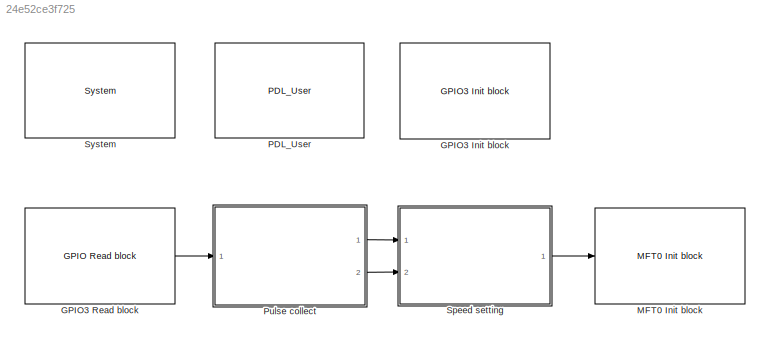
MODEL slx_24e52ce3f725
KIND model
CONFIG PreLoadFcn = FM4_customization
BLOCK [Reference] GPIO3 Init block  REF=FM4_Peripheral_Lib/GPIO/GPIO3 Init block
  Ports = []
  SourceBlock = FM4_Peripheral_Lib/GPIO/GPIO3 Init block
  SourceType = FM4 TSP
  g_GpioP30_Mode = GPIO Input Pin
  g_GpioP30_Pullup = Enable pull-up
  g_GpioP30_Used = on
  g_GpioP31_Mode = GPIO Output Pin
  g_GpioP31_Pullup = Disable pull-up
  g_GpioP31_Used = off
  g_GpioP32_Mode = GPIO Output Pin
  g_GpioP32_Pullup = Disable pull-up
  g_GpioP32_Used = off
  g_GpioP33_Mode = GPIO Output Pin
  g_GpioP33_PeriFcn = ADTG_6 for ADC0
  g_GpioP33_Pullup = Disable pull-up
  g_GpioP33_Used = off
  g_GpioP34_Mode = GPIO Output Pin
  g_GpioP34_PeriFcn = FRCK0_0 for FRCK0
  g_GpioP34_Pullup = Disable pull-up
  g_GpioP34_Used = off
  g_GpioP35_Mode = GPIO Output Pin
  g_GpioP35_PeriFcn = IC03_0 for IC03
  g_GpioP35_Pullup = Disable pull-up
  g_GpioP35_Used = off
  g_GpioP36_Mode = GPIO Output Pin
  g_GpioP36_PeriFcn = IC02_0 for IC02
  g_GpioP36_Pullup = Disable pull-up
  g_GpioP36_Used = off
  g_GpioP37_Mode = GPIO Output Pin
  g_GpioP37_PeriFcn = IC01_0 for IC01
  g_GpioP37_Pullup = Disable pull-up
  g_GpioP37_Used = off
  g_GpioP38_Mode = GPIO Output Pin
  g_GpioP38_PeriFcn = IC00_0 for IC00
  g_GpioP38_Pullup = Disable pull-up
  g_GpioP38_Used = off
  g_GpioP39_Mode = GPIO Output Pin
  g_GpioP39_PeriFcn = DTTIX0_0 for DTTIX0
  g_GpioP39_Pullup = Disable pull-up
  g_GpioP39_Used = off
  g_GpioP3A_Mode = Peripheral Function Pin
  g_GpioP3A_PeriFcn = RTO00_0 for RTO00
  g_GpioP3A_Pullup = Disable pull-up
  g_GpioP3A_Used = on
  g_GpioP3B_Mode = GPIO Output Pin
  g_GpioP3B_PeriFcn = RTO01_0 for RTO01
  g_GpioP3B_Pullup = Disable pull-up
  g_GpioP3B_Used = off
  g_GpioP3C_Mode = GPIO Output Pin
  g_GpioP3C_PeriFcn = RTO02_0 for RTO02
  g_GpioP3C_Pullup = Disable pull-up
  g_GpioP3C_Used = off
  g_GpioP3D_Mode = GPIO Output Pin
  g_GpioP3D_PeriFcn = RTO03_0 for RTO03
  g_GpioP3D_Pullup = Disable pull-up
  g_GpioP3D_Used = off
  g_GpioP3E_Mode = GPIO Output Pin
  g_GpioP3E_PeriFcn = RTO04_0 for RTO04
  g_GpioP3E_Pullup = Disable pull-up
  g_GpioP3E_Used = off
  g_GpioP3F_Mode = GPIO Output Pin
  g_GpioP3F_PeriFcn = RTO05_0 for RTO05
  g_GpioP3F_Pullup = Disable pull-up
  g_GpioP3F_Used = off
BLOCK [Reference] GPIO3 Read block  REF=FM4_Peripheral_Lib/GPIO/GPIO Read block
  Ports = [0, 1]
  SourceBlock = FM4_Peripheral_Lib/GPIO/GPIO Read block
  SourceType = FM4 TSP
  g_Check_GPIO0 = on
  g_Check_GPIO1 = on
  g_Check_GPIO2 = on
  g_Check_GPIO3 = on
  g_Check_GPIO4 = on
  g_Check_GPIO5 = on
  g_Check_GPIO6 = on
  g_Check_GPIO7 = on
  g_Check_GPIO8 = on
  g_Check_GPIOE = on
  g_GpioP00_Read = off
  g_GpioP01_Read = off
  g_GpioP02_Read = off
  g_GpioP03_Read = off
  g_GpioP04_Read = off
  g_GpioP05_Read = off
  g_GpioP06_Read = off
  g_GpioP07_Read = off
  g_GpioP08_Read = off
  g_GpioP09_Read = off
  g_GpioP0A_Read = off
  g_GpioP0B_Read = off
  g_GpioP0C_Read = off
  g_GpioP0D_Read = off
  g_GpioP0E_Read = off
  g_GpioP10_Read = off
  g_GpioP11_Read = off
  g_GpioP12_Read = off
  g_GpioP13_Read = off
  g_GpioP14_Read = off
  g_GpioP15_Read = off
  g_GpioP16_Read = off
  g_GpioP17_Read = off
  g_GpioP18_Read = off
  g_GpioP19_Read = off
  g_GpioP1A_Read = off
  g_GpioP1B_Read = off
  g_GpioP1C_Read = off
  g_GpioP1D_Read = off
  g_GpioP1E_Read = off
  g_GpioP1F_Read = off
  g_GpioP20_Read = off
  g_GpioP21_Read = off
  g_GpioP22_Read = off
  g_GpioP23_Read = off
  g_GpioP24_Read = off
  g_GpioP25_Read = off
  g_GpioP26_Read = off
  g_GpioP27_Read = off
  g_GpioP30_Read = on
  g_GpioP31_Read = off
  g_GpioP32_Read = off
  g_GpioP33_Read = off
  g_GpioP34_Read = off
  g_GpioP35_Read = off
  g_GpioP36_Read = off
  g_GpioP37_Read = off
  g_GpioP38_Read = off
  g_GpioP39_Read = off
  g_GpioP3A_Read = off
  g_GpioP3B_Read = off
  g_GpioP3C_Read = off
  g_GpioP3D_Read = off
  g_GpioP3E_Read = off
  g_GpioP3F_Read = off
  g_GpioP40_Read = off
  g_GpioP41_Read = off
  g_GpioP42_Read = off
  g_GpioP43_Read = off
  g_GpioP44_Read = off
  g_GpioP45_Read = off
  g_GpioP46_Read = off
  g_GpioP47_Read = off
  g_GpioP48_Read = off
  g_GpioP49_Read = off
  g_GpioP4B_Read = off
  g_GpioP4C_Read = off
  g_GpioP4D_Read = off
  g_GpioP4E_Read = off
  g_GpioP50_Read = off
  g_GpioP51_Read = off
  g_GpioP52_Read = off
  g_GpioP53_Read = off
  g_GpioP54_Read = off
  g_GpioP55_Read = off
  g_GpioP56_Read = off
  g_GpioP57_Read = off
  g_GpioP58_Read = off
  g_GpioP59_Read = off
  g_GpioP5A_Read = off
  g_GpioP5B_Read = off
  g_GpioP60_Read = off
  g_GpioP61_Read = off
  g_GpioP62_Read = off
  g_GpioP63_Read = off
  g_GpioP64_Read = off
  g_GpioP65_Read = off
  g_GpioP66_Read = off
  g_GpioP67_Read = off
  g_GpioP68_Read = off
  g_GpioP70_Read = off
  g_GpioP71_Read = off
  g_GpioP72_Read = off
  g_GpioP73_Read = off
  g_GpioP74_Read = off
  g_GpioP80_Read = off
  g_GpioP81_Read = off
  g_GpioPE0_Read = off
  g_GpioPE2_Read = off
  g_GpioPE3_Read = off
  g_Gpio_port_select = GPIO3
BLOCK [Reference] MFT0 Init block  REF=FM4_Peripheral_Lib/MFT/MFT0 Init block
  Ports = [1]
  SourceBlock = FM4_Peripheral_Lib/MFT/MFT0 Init block
  SourceType = FM4 TSP
  g_ADCMP0_config = off
  g_ADCMP1_config = off
  g_ADCMP2_config = off
  g_ADCMP3_config = off
  g_ADCMP4_config = off
  g_ADCMP5_config = off
  g_adcmp_acmp_buf_ch0 = Disable the buffer function
  g_adcmp_acmp_buf_ch1 = Disable the buffer function
  g_adcmp_acmp_buf_ch2 = Disable the buffer function
  g_adcmp_acmp_buf_ch3 = Disable the buffer function
  g_adcmp_acmp_buf_ch4 = Disable the buffer function
  g_adcmp_acmp_buf_ch5 = Disable the buffer function
  g_adcmp_com_val_ch0 = 0
  g_adcmp_com_val_ch1 = 0
  g_adcmp_com_val_ch2 = 0
  g_adcmp_com_val_ch3 = 0
  g_adcmp_com_val_ch4 = 0
  g_adcmp_com_val_ch5 = 0
  g_adcmp_des_ch0 = ADC0 scan conversion start
  g_adcmp_des_ch1 = ADC0 scan conversion start
  g_adcmp_des_ch2 = ADC0 scan conversion start
  g_adcmp_des_ch3 = ADC0 scan conversion start
  g_adcmp_des_ch4 = ADC0 scan conversion start
  g_adcmp_des_ch5 = ADC0 scan conversion start
  g_adcmp_down_fun_ch0 = off
  g_adcmp_down_fun_ch1 = off
  g_adcmp_down_fun_ch2 = off
  g_adcmp_down_fun_ch3 = off
  g_adcmp_down_fun_ch4 = off
  g_adcmp_down_fun_ch5 = off
  g_adcmp_mode_ch0 = Normal mode
  g_adcmp_mode_ch1 = Normal mode
  g_adcmp_mode_ch2 = Normal mode
  g_adcmp_mode_ch3 = Normal mode
  g_adcmp_mode_ch4 = Normal mode
  g_adcmp_mode_ch5 = Normal mode
  g_adcmp_ocu_sel_ch0 = OCCP0
  g_adcmp_ocu_sel_ch1 = OCCP0
  g_adcmp_ocu_sel_ch2 = OCCP2
  g_adcmp_ocu_sel_ch3 = OCCP2
  g_adcmp_ocu_sel_ch4 = OCCP4
  g_adcmp_ocu_sel_ch5 = OCCP4
  g_adcmp_peak_fun_ch0 = off
  g_adcmp_peak_fun_ch1 = off
  g_adcmp_peak_fun_ch2 = off
  g_adcmp_peak_fun_ch3 = off
  g_adcmp_peak_fun_ch4 = off
  g_adcmp_peak_fun_ch5 = off
  g_adcmp_up_fun_ch0 = off
  g_adcmp_up_fun_ch1 = off
  g_adcmp_up_fun_ch2 = off
  g_adcmp_up_fun_ch3 = off
  g_adcmp_up_fun_ch4 = off
  g_adcmp_up_fun_ch5 = off
  g_adcmp_zero_fun_ch0 = off
  g_adcmp_zero_fun_ch1 = off
  g_adcmp_zero_fun_ch2 = off
  g_adcmp_zero_fun_ch3 = off
  g_adcmp_zero_fun_ch4 = off
  g_adcmp_zero_fun_ch5 = off
  g_frt0_clk_cycle = PCLK divided by 1024
  g_frt0_clk_sig = Internal clock (PCLK)
  g_frt0_config = on
  g_frt0_count_mode = Up-count mode
  g_frt0_cycleval = 9999
  g_frt0_peakint = off
  g_frt0_peakint_callback = 'MFT0FRT0PeakIntCallback'
  g_frt0_peakint_mask = No Masked
  g_frt0_tccp_buf = off
  g_frt0_zeroint = off
  g_frt0_zeroint_callback = 'MFT0FRT0ZeroIntCallback'
  g_frt0_zeroint_mask = No Masked
  g_frt1_clk_cycle = The same value as PCLK
  g_frt1_clk_sig = Internal clock (PCLK)
  g_frt1_config = off
  g_frt1_count_mode = Up-count mode
  g_frt1_cycleval = 65535
  g_frt1_peakint = off
  g_frt1_peakint_callback = 'MFT0FRT1PeakIntCallback'
  g_frt1_peakint_mask = No Masked
  g_frt1_tccp_buf = off
  g_frt1_zeroint = off
  g_frt1_zeroint_callback = 'MFT0FRT1ZeroIntCallback'
  g_frt1_zeroint_mask = No Masked
  g_frt2_clk_cycle = The same value as PCLK
  g_frt2_clk_sig = Internal clock (PCLK)
  g_frt2_config = off
  g_frt2_count_mode = Up-count mode
  g_frt2_cycleval = 65535
  g_frt2_peakint = off
  g_frt2_peakint_callback = 'MFT0FRT2PeakIntCallback'
  g_frt2_peakint_mask = No Masked
  g_frt2_tccp_buf = off
  g_frt2_zeroint = off
  g_frt2_zeroint_callback = 'MFT0FRT2ZeroIntCallback'
  g_frt2_zeroint_mask = No Masked
  g_frt_connect_adcmp_ch0 = FRT0
  g_frt_connect_adcmp_ch1 = FRT0
  g_frt_connect_adcmp_ch2 = FRT0
  g_frt_connect_adcmp_ch3 = FRT0
  g_frt_connect_adcmp_ch4 = FRT0
  g_frt_connect_adcmp_ch5 = FRT0
  g_frt_connect_adcmp_ext_ch0 = FRT0 of MFT1
  g_frt_connect_adcmp_ext_ch1 = FRT0 of MFT1
  g_frt_connect_adcmp_ext_ch2 = FRT0 of MFT1
  g_frt_connect_adcmp_ext_ch3 = FRT0 of MFT1
  g_frt_connect_adcmp_ext_ch4 = FRT0 of MFT1
  g_frt_connect_adcmp_ext_ch5 = FRT0 of MFT1
  g_frt_connect_icu_ch0 = FRT0
  g_frt_connect_icu_ch1 = FRT0
  g_frt_connect_icu_ch2 = FRT0
  g_frt_connect_icu_ch3 = FRT0
  g_frt_connect_icu_ext_ch0 = FRT0 of MFT1
  g_frt_connect_icu_ext_ch1 = FRT0 of MFT1
  g_frt_connect_icu_ext_ch2 = FRT0 of MFT1
  g_frt_connect_icu_ext_ch3 = FRT0 of MFT1
  g_frt_connect_ocu_ch0 = FRT0
  g_frt_connect_ocu_ch1 = FRT0
  g_frt_connect_ocu_ch2 = FRT0
  g_frt_connect_ocu_ch3 = FRT0
  g_frt_connect_ocu_ch4 = FRT0
  g_frt_connect_ocu_ch5 = FRT0
  g_frt_connect_ocu_ext_ch0 = FRT0 of MFT1
  g_frt_connect_ocu_ext_ch1 = FRT0 of MFT1
  g_frt_connect_ocu_ext_ch2 = FRT0 of MFT1
  g_frt_connect_ocu_ext_ch3 = FRT0 of MFT1
  g_frt_connect_ocu_ext_ch4 = FRT0 of MFT1
  g_frt_connect_ocu_ext_ch5 = FRT0 of MFT1
  g_icu0_config = off
  g_icu1_config = off
  g_icu2_config = off
  g_icu3_config = off
  g_icu_int_callback_ch0 = 'MFT0ICU0IntHandler'
  g_icu_int_callback_ch1 = 'MFT0ICU1IntHandler'
  g_icu_int_callback_ch2 = 'MFT0ICU2IntHandler'
  g_icu_int_callback_ch3 = 'MFT0ICU3IntHandler'
  g_icu_int_ch0 = off
  g_icu_int_ch1 = off
  g_icu_int_ch2 = off
  g_icu_int_ch3 = off
  g_icu_mode_ch0 = Rising edge mode
  g_icu_mode_ch1 = Rising edge mode
  g_icu_mode_ch2 = Rising edge mode
  g_icu_mode_ch3 = Rising edge mode
  g_nzcl_anafilter_callback = 'MFT0DTIFIntCallback'
  g_nzcl_config = off
  g_nzcl_digfilter_callback = 'MFT0DTIFIntCallback'
  g_nzcl_digfilter_trigger = DTTIX pin
  g_nzcl_digfilter_width = No noise-canceling
  g_nzcl_filter_sel = Digital noise canceller
  g_ocu0_config = on
  g_ocu1_config = off
  g_ocu2_config = off
  g_ocu3_config = off
  g_ocu4_config = off
  g_ocu5_config = off
  g_ocu_FrtDownCntMatchRtStatus_ch0 = RT0 output signal is held
  g_ocu_FrtDownCntMatchRtStatus_ch2 = RT2 output signal is held
  g_ocu_FrtDownCntMatchRtStatus_ch4 = RT4 output signal is held
  g_ocu_FrtDownOddMatchEvenMatchOddChRtStatus_ch1 = RT1 output signal is held
  g_ocu_FrtDownOddMatchEvenMatchOddChRtStatus_ch3 = RT3 output signal is held
  g_ocu_FrtDownOddMatchEvenMatchOddChRtStatus_ch5 = RT5 output signal is held
  g_ocu_FrtDownOddMatchEvenNotMatchOddChRtStatus_ch1 = RT1 output signal is held
  g_ocu_FrtDownOddMatchEvenNotMatchOddChRtStatus_ch3 = RT3 output signal is held
  g_ocu_FrtDownOddMatchEvenNotMatchOddChRtStatus_ch5 = RT5 output signal is held
  g_ocu_FrtDownOddNotMatchEvenMatchOddChRtStatus_ch1 = RT1 output signal is held
  g_ocu_FrtDownOddNotMatchEvenMatchOddChRtStatus_ch3 = RT3 output signal is held
  g_ocu_FrtDownOddNotMatchEvenMatchOddChRtStatus_ch5 = RT5 output signal is held
  g_ocu_FrtPeakMatchRtStatus_ch0 = RT0 output signal is held
  g_ocu_FrtPeakMatchRtStatus_ch2 = RT2 output signal is held
  g_ocu_FrtPeakMatchRtStatus_ch4 = RT4 output signal is held
  g_ocu_FrtPeakNotMatchRtStatus_ch0 = RT0 output signal is reversed
  g_ocu_FrtPeakNotMatchRtStatus_ch2 = RT2 output signal is held
  g_ocu_FrtPeakNotMatchRtStatus_ch4 = RT4 output signal is held
  g_ocu_FrtPeakOddMatchEvenMatchOddChRtStatus_ch1 = RT1 output signal is held
  g_ocu_FrtPeakOddMatchEvenMatchOddChRtStatus_ch3 = RT3 output signal is held
  g_ocu_FrtPeakOddMatchEvenMatchOddChRtStatus_ch5 = RT5 output signal is held
  g_ocu_FrtPeakOddMatchEvenNotMatchOddChRtStatus_ch1 = RT1 output signal is held
  g_ocu_FrtPeakOddMatchEvenNotMatchOddChRtStatus_ch3 = RT3 output signal is held
  g_ocu_FrtPeakOddMatchEvenNotMatchOddChRtStatus_ch5 = RT5 output signal is held
  g_ocu_FrtPeakOddNotMatchEvenMatchOddChRtStatus_ch1 = RT1 output signal is held
  g_ocu_FrtPeakOddNotMatchEvenMatchOddChRtStatus_ch3 = RT3 output signal is held
  g_ocu_FrtPeakOddNotMatchEvenMatchOddChRtStatus_ch5 = RT5 output signal is held
  g_ocu_FrtPeakOddNotMatchEvenNotMatchOddChRtStatus_ch1 = RT1 output signal is held
  g_ocu_FrtPeakOddNotMatchEvenNotMatchOddChRtStatus_ch3 = RT3 output signal is held
  g_ocu_FrtPeakOddNotMatchEvenNotMatchOddChRtStatus_ch5 = RT5 output signal is held
  g_ocu_FrtUpCntMatchRtStatus_ch0 = RT0 output signal is reversed
  g_ocu_FrtUpCntMatchRtStatus_ch2 = RT2 output signal is held
  g_ocu_FrtUpCntMatchRtStatus_ch4 = RT4 output signal is held
  g_ocu_FrtUpCntOddMatchEvenMatchOddChRtStatus_ch1 = RT1 output signal is held
  g_ocu_FrtUpCntOddMatchEvenMatchOddChRtStatus_ch3 = RT3 output signal is held
  g_ocu_FrtUpCntOddMatchEvenMatchOddChRtStatus_ch5 = RT5 output signal is held
  g_ocu_FrtUpCntOddMatchEvenNotMatchOddChRtStatus_ch1 = RT1 output signal is held
  g_ocu_FrtUpCntOddMatchEvenNotMatchOddChRtStatus_ch3 = RT3 output signal is held
  g_ocu_FrtUpCntOddMatchEvenNotMatchOddChRtStatus_ch5 = RT5 output signal is held
  g_ocu_FrtUpCntOddNotMatchEvenMatchOddChRtStatus_ch1 = RT1 output signal is held
  g_ocu_FrtUpCntOddNotMatchEvenMatchOddChRtStatus_ch3 = RT3 output signal is held
  g_ocu_FrtUpCntOddNotMatchEvenMatchOddChRtStatus_ch5 = RT5 output signal is held
  g_ocu_FrtZeroMatchRtStatus_ch0 = RT0 output signal is held
  g_ocu_FrtZeroMatchRtStatus_ch2 = RT2 output signal is held
  g_ocu_FrtZeroMatchRtStatus_ch4 = RT4 output signal is held
  g_ocu_FrtZeroNotMatchRtStatus_ch0 = RT0 output signal is held
  g_ocu_FrtZeroNotMatchRtStatus_ch2 = RT2 output signal is held
  g_ocu_FrtZeroNotMatchRtStatus_ch4 = RT4 output signal is held
  g_ocu_FrtZeroOddMatchEvenMatchOddChRtStatus_ch1 = RT1 output signal is held
  g_ocu_FrtZeroOddMatchEvenMatchOddChRtStatus_ch3 = RT3 output signal is held
  g_ocu_FrtZeroOddMatchEvenMatchOddChRtStatus_ch5 = RT5 output signal is held
  g_ocu_FrtZeroOddMatchEvenNotMatchOddChRtStatus_ch1 = RT1 output signal is held
  g_ocu_FrtZeroOddMatchEvenNotMatchOddChRtStatus_ch3 = RT3 output signal is held
  g_ocu_FrtZeroOddMatchEvenNotMatchOddChRtStatus_ch5 = RT5 output signal is held
  g_ocu_FrtZeroOddNotMatchEvenMatchOddChRtStatus_ch1 = RT1 output signal is held
  g_ocu_FrtZeroOddNotMatchEvenMatchOddChRtStatus_ch3 = RT3 output signal is held
  g_ocu_FrtZeroOddNotMatchEvenMatchOddChRtStatus_ch5 = RT5 output signal is held
  g_ocu_FrtZeroOddNotMatchEvenNotMatchOddChRtStatus_ch1 = RT1 output signal is held
  g_ocu_FrtZeroOddNotMatchEvenNotMatchOddChRtStatus_ch3 = RT3 output signal is held
  g_ocu_FrtZeroOddNotMatchEvenNotMatchOddChRtStatus_ch5 = RT5 output signal is held
  g_ocu_IopFlagWhenFrtDownCntMatch_ch0 = IOP0 is held
  g_ocu_IopFlagWhenFrtDownCntMatch_ch2 = IOP2 is held
  g_ocu_IopFlagWhenFrtDownCntMatch_ch4 = IOP4 is held
  g_ocu_IopFlagWhenFrtDownCntOddMatch_ch1 = IOP1 is held
  g_ocu_IopFlagWhenFrtDownCntOddMatch_ch3 = IOP3 is held
  g_ocu_IopFlagWhenFrtDownCntOddMatch_ch5 = IOP5 is held
  g_ocu_IopFlagWhenFrtPeakMatch_ch0 = IOP0 is held
  g_ocu_IopFlagWhenFrtPeakMatch_ch2 = IOP2 is held
  g_ocu_IopFlagWhenFrtPeakMatch_ch4 = IOP4 is held
  g_ocu_IopFlagWhenFrtPeakOddMatch_ch1 = IOP1 is held
  g_ocu_IopFlagWhenFrtPeakOddMatch_ch3 = IOP3 is held
  g_ocu_IopFlagWhenFrtPeakOddMatch_ch5 = IOP5 is held
  g_ocu_IopFlagWhenFrtUpCntMatch_ch0 = IOP0 is held
  g_ocu_IopFlagWhenFrtUpCntMatch_ch2 = IOP2 is held
  g_ocu_IopFlagWhenFrtUpCntMatch_ch4 = IOP4 is held
  g_ocu_IopFlagWhenFrtUpCntOddMatch_ch1 = IOP1 is held
  g_ocu_IopFlagWhenFrtUpCntOddMatch_ch3 = IOP3 is held
  g_ocu_IopFlagWhenFrtUpCntOddMatch_ch5 = IOP5 is held
  g_ocu_IopFlagWhenFrtZeroMatch_ch0 = IOP0 is held
  g_ocu_IopFlagWhenFrtZeroMatch_ch2 = IOP2 is held
  g_ocu_IopFlagWhenFrtZeroMatch_ch4 = IOP4 is held
  g_ocu_IopFlagWhenFrtZeroOddMatch_ch1 = IOP1 is held
  g_ocu_IopFlagWhenFrtZeroOddMatch_ch3 = IOP3 is held
  g_ocu_IopFlagWhenFrtZeroOddMatch_ch5 = IOP5 is held
  g_ocu_int_callback_ch0 = 'MFT0OCU0IntCallback'
  g_ocu_int_callback_ch1 = 'MFT0OCU1IntCallback'
  g_ocu_int_callback_ch2 = 'MFT0OCU2IntCallback'
  g_ocu_int_callback_ch3 = 'MFT0OCU3IntCallback'
  g_ocu_int_callback_ch4 = 'MFT0OCU4IntCallback'
  g_ocu_int_callback_ch5 = 'MFT0OCU5IntCallback'
  g_ocu_int_ch0 = off
  g_ocu_int_ch1 = off
  g_ocu_int_ch2 = off
  g_ocu_int_ch3 = off
  g_ocu_int_ch4 = off
  g_ocu_int_ch5 = off
  g_ocu_mode_ch0 = FM4 mode
  g_ocu_mode_ch1 = FM4 mode
  g_ocu_mode_ch2 = FM4 mode
  g_ocu_mode_ch3 = FM4 mode
  g_ocu_mode_ch4 = FM4 mode
  g_ocu_mode_ch5 = FM4 mode
  g_ocu_occp_buf_ch0 = Buffer transfer when FRT counter value is TCCP
  g_ocu_occp_buf_ch1 = Disable the buffer function
  g_ocu_occp_buf_ch2 = Disable the buffer function
  g_ocu_occp_buf_ch3 = Disable the buffer function
  g_ocu_occp_buf_ch4 = Disable the buffer function
  g_ocu_occp_buf_ch5 = Disable the buffer function
  g_ocu_ocse_buf_ch0 = Disable the buffer function
  g_ocu_ocse_buf_ch1 = Disable the buffer function
  g_ocu_ocse_buf_ch2 = Disable the buffer function
  g_ocu_ocse_buf_ch3 = Disable the buffer function
  g_ocu_ocse_buf_ch4 = Disable the buffer function
  g_ocu_ocse_buf_ch5 = Disable the buffer function
  g_ocu_rt_level_ch0 = High-level
  g_ocu_rt_level_ch1 = Low-level
  g_ocu_rt_level_ch2 = Low-level
  g_ocu_rt_level_ch3 = Low-level
  g_ocu_rt_level_ch4 = Low-level
  g_ocu_rt_level_ch5 = Low-level
  g_wfg10_config = off
  g_wfg32_config = off
  g_wfg54_config = off
  g_wfg_ch_gate_ppg_dt_ch10 = Output Low-level signals
  g_wfg_ch_gate_ppg_dt_ch32 = Output Low-level signals
  g_wfg_ch_gate_ppg_dt_ch54 = Output Low-level signals
  g_wfg_ch_gate_rtppg_ch10 = Output Low-level signals
  g_wfg_ch_gate_rtppg_ch32 = Output Low-level signals
  g_wfg_ch_gate_rtppg_ch54 = Output Low-level signals
  g_wfg_ch_gate_tippg_ch10 = Output Low-level signals
  g_wfg_ch_gate_tippg_ch32 = Output Low-level signals
  g_wfg_ch_gate_tippg_ch54 = Output Low-level signals
  g_wfg_clk_cycle_ch10 = The same value as PCLK
  g_wfg_clk_cycle_ch32 = The same value as PCLK
  g_wfg_clk_cycle_ch54 = The same value as PCLK
  g_wfg_mode_ch10 = Through mode
  g_wfg_mode_ch32 = Through mode
  g_wfg_mode_ch54 = Through mode
  g_wfg_ppgsel_ch10 = Ch0 of the PPG timer
  g_wfg_ppgsel_ch32 = Ch0 of the PPG timer
  g_wfg_ppgsel_ch54 = Ch0 of the PPG timer
  g_wfg_rto_rtppg_ch0 = Output RT(0) signal
  g_wfg_rto_rtppg_ch1 = Output RT(1) signal
  g_wfg_rto_rtppg_ch2 = Output RT(2) signal
  g_wfg_rto_rtppg_ch3 = Output RT(3) signal
  g_wfg_rto_rtppg_ch4 = Output RT(4) signal
  g_wfg_rto_rtppg_ch5 = Output RT(5) signal
  g_wfg_rto_through_ch0 = Output RT(0) signal
  g_wfg_rto_through_ch1 = Output RT(1) signal
  g_wfg_rto_through_ch2 = Output RT(2) signal
  g_wfg_rto_through_ch3 = Output RT(3) signal
  g_wfg_rto_through_ch4 = Output RT(4) signal
  g_wfg_rto_through_ch5 = Output RT(5) signal
  g_wfg_rto_tippg_ch0 = Output WFG timer active flag 0
  g_wfg_rto_tippg_ch1 = Output WFG timer active flag 1
  g_wfg_rto_tippg_ch2 = Output WFG timer active flag 2
  g_wfg_rto_tippg_ch3 = Output WFG timer active flag 3
  g_wfg_rto_tippg_ch4 = Output WFG timer active flag 4
  g_wfg_rto_tippg_ch5 = Output WFG timer active flag 5
  g_wfg_sig_polarity_ch10 = Output RTO(1) and RTO(0) signals without changing the level
  g_wfg_sig_polarity_ch32 = Output RTO(3) and RTO(2) signals without changing the level
  g_wfg_sig_polarity_ch54 = Output RTO(5) and RTO(4) signals without changing the level
  g_wfg_timeint_callback_ch10 = 'MFT0WFG10IntCallback'
  g_wfg_timeint_callback_ch32 = 'MFT0WFG32IntCallback'
  g_wfg_timeint_callback_ch54 = 'MFT0WFG54IntCallback'
  g_wfg_timeint_ch10 = off
  g_wfg_timeint_ch32 = off
  g_wfg_timeint_ch54 = off
  g_wfg_wfta_ch10 = 0
  g_wfg_wfta_ch32 = 0
  g_wfg_wfta_ch54 = 0
  g_wfg_wftb_ch10 = 0
  g_wfg_wftb_ch32 = 0
  g_wfg_wftb_ch54 = 0
  g_wfg_wftf_ch10 = 0
  g_wfg_wftf_ch32 = 0
  g_wfg_wftf_ch54 = 0
BLOCK [Reference] PDL_User  REF=FM4_Peripheral_Lib/General/PDL_User
  Ports = []
  SourceBlock = FM4_Peripheral_Lib/General/PDL_User
  SourceType = FM4 TSP
  g_Check = off
  g_adc_channels = 32
  g_back_up_registers = 32
  g_dma_channels = 8
  g_dstc_adc0_prio = off
  g_dstc_adc0_scan = off
  g_dstc_adc1_prio = off
  g_dstc_adc1_scan = off
  g_dstc_adc2_prio = off
  g_dstc_adc2_scan = off
  g_dstc_bt0_irq0 = off
  g_dstc_bt0_irq1 = off
  g_dstc_bt10_irq0 = off
  g_dstc_bt10_irq1 = off
  g_dstc_bt11_irq0 = off
  g_dstc_bt11_irq1 = off
  g_dstc_bt12_irq0 = off
  g_dstc_bt12_irq1 = off
  g_dstc_bt13_irq0 = off
  g_dstc_bt13_irq1 = off
  g_dstc_bt14_irq0 = off
  g_dstc_bt14_irq1 = off
  g_dstc_bt15_irq0 = off
  g_dstc_bt15_irq1 = off
  g_dstc_bt1_irq0 = off
  g_dstc_bt1_irq1 = off
  g_dstc_bt2_irq0 = off
  g_dstc_bt2_irq1 = off
  g_dstc_bt3_irq0 = off
  g_dstc_bt3_irq1 = off
  g_dstc_bt4_irq0 = off
  g_dstc_bt4_irq1 = off
  g_dstc_bt5_irq0 = off
  g_dstc_bt5_irq1 = off
  g_dstc_bt6_irq0 = off
  g_dstc_bt6_irq1 = off
  g_dstc_bt7_irq0 = off
  g_dstc_bt7_irq1 = off
  g_dstc_bt8_irq0 = off
  g_dstc_bt8_irq1 = off
  g_dstc_bt9_irq0 = off
  g_dstc_bt9_irq1 = off
  g_dstc_channels = 128
  g_dstc_extint0 = off
  g_dstc_extint1 = off
  g_dstc_extint10 = off
  g_dstc_extint11 = off
  g_dstc_extint12 = off
  g_dstc_extint13 = off
  g_dstc_extint14 = off
  g_dstc_extint15 = off
  g_dstc_extint16 = off
  g_dstc_extint17 = off
  g_dstc_extint18 = off
  g_dstc_extint19 = off
  g_dstc_extint2 = off
  g_dstc_extint20 = off
  g_dstc_extint21 = off
  g_dstc_extint22 = off
  g_dstc_extint23 = off
  g_dstc_extint24 = off
  g_dstc_extint25 = off
  g_dstc_extint26 = off
  g_dstc_extint27 = off
  g_dstc_extint28 = off
  g_dstc_extint29 = off
  g_dstc_extint3 = off
  g_dstc_extint30 = off
  g_dstc_extint31 = off
  g_dstc_extint4 = off
  g_dstc_extint5 = off
  g_dstc_extint6 = off
  g_dstc_extint7 = off
  g_dstc_extint8 = off
  g_dstc_extint9 = off
  g_dstc_mfs0_rx = off
  g_dstc_mfs0_tx = off
  g_dstc_mfs10_rx = off
  g_dstc_mfs10_tx = off
  g_dstc_mfs11_rx = off
  g_dstc_mfs11_tx = off
  g_dstc_mfs12_rx = off
  g_dstc_mfs12_tx = off
  g_dstc_mfs13_rx = off
  g_dstc_mfs13_tx = off
  g_dstc_mfs14_rx = off
  g_dstc_mfs14_tx = off
  g_dstc_mfs15_rx = off
  g_dstc_mfs15_tx = off
  g_dstc_mfs1_rx = off
  g_dstc_mfs1_tx = off
  g_dstc_mfs2_rx = off
  g_dstc_mfs2_tx = off
  g_dstc_mfs3_rx = off
  g_dstc_mfs3_tx = off
  g_dstc_mfs4_rx = off
  g_dstc_mfs4_tx = off
  g_dstc_mfs5_rx = off
  g_dstc_mfs5_tx = off
  g_dstc_mfs6_rx = off
  g_dstc_mfs6_tx = off
  g_dstc_mfs7_rx = off
  g_dstc_mfs7_tx = off
  g_dstc_mfs8_rx = off
  g_dstc_mfs8_tx = off
  g_dstc_mfs9_rx = off
  g_dstc_mfs9_tx = off
  g_dstc_mft0_frt0_peak = off
  g_dstc_mft0_frt0_zero = off
  g_dstc_mft0_frt1_peak = off
  g_dstc_mft0_frt1_zero = off
  g_dstc_mft0_frt2_peak = off
  g_dstc_mft0_frt2_zero = off
  g_dstc_mft0_icu0 = off
  g_dstc_mft0_icu1 = off
  g_dstc_mft0_icu2 = off
  g_dstc_mft0_icu3 = off
  g_dstc_mft0_ocu0 = off
  g_dstc_mft0_ocu1 = off
  g_dstc_mft0_ocu2 = off
  g_dstc_mft0_ocu3 = off
  g_dstc_mft0_ocu4 = off
  g_dstc_mft0_ocu5 = off
  g_dstc_mft0_wfg10 = off
  g_dstc_mft0_wfg32 = off
  g_dstc_mft0_wfg54 = off
  g_dstc_mft1_frt0_peak = off
  g_dstc_mft1_frt0_zero = off
  g_dstc_mft1_frt1_peak = off
  g_dstc_mft1_frt1_zero = off
  g_dstc_mft1_frt2_peak = off
  g_dstc_mft1_frt2_zero = off
  g_dstc_mft1_icu0 = off
  g_dstc_mft1_icu1 = off
  g_dstc_mft1_icu2 = off
  g_dstc_mft1_icu3 = off
  g_dstc_mft1_ocu0 = off
  g_dstc_mft1_ocu1 = off
  g_dstc_mft1_ocu2 = off
  g_dstc_mft1_ocu3 = off
  g_dstc_mft1_ocu4 = off
  g_dstc_mft1_ocu5 = off
  g_dstc_mft1_wfg10 = off
  g_dstc_mft1_wfg32 = off
  g_dstc_mft1_wfg54 = off
  g_dstc_mft2_frt0_peak = off
  g_dstc_mft2_frt0_zero = off
  g_dstc_mft2_frt1_peak = off
  g_dstc_mft2_frt1_zero = off
  g_dstc_mft2_frt2_peak = off
  g_dstc_mft2_frt2_zero = off
  g_dstc_mft2_icu0 = off
  g_dstc_mft2_icu1 = off
  g_dstc_mft2_icu2 = off
  g_dstc_mft2_icu3 = off
  g_dstc_mft2_ocu0 = off
  g_dstc_mft2_ocu1 = off
  g_dstc_mft2_ocu2 = off
  g_dstc_mft2_ocu3 = off
  g_dstc_mft2_ocu4 = off
  g_dstc_mft2_ocu5 = off
  g_dstc_mft2_wfg10 = off
  g_dstc_mft2_wfg32 = off
  g_dstc_mft2_wfg54 = off
  g_dstc_ppg0 = off
  g_dstc_ppg10 = off
  g_dstc_ppg12 = off
  g_dstc_ppg14 = off
  g_dstc_ppg16 = off
  g_dstc_ppg18 = off
  g_dstc_ppg2 = off
  g_dstc_ppg20 = off
  g_dstc_ppg4 = off
  g_dstc_ppg6 = off
  g_dstc_ppg8 = off
  g_dstc_qprc0_count_inversion = off
  g_dstc_qprc0_out_of_range = off
  g_dstc_qprc0_pc_match = off
  g_dstc_qprc0_pc_match_rc_match = off
  g_dstc_qprc0_pc_rc_match = off
  g_dstc_qprc0_ufl_ofl_z = off
  g_dstc_qprc1_count_inversion = off
  g_dstc_qprc1_out_of_range = off
  g_dstc_qprc1_pc_match = off
  g_dstc_qprc1_pc_match_rc_match = off
  g_dstc_qprc1_pc_rc_match = off
  g_dstc_qprc1_ufl_ofl_z = off
  g_dstc_qprc2_count_inversion = off
  g_dstc_qprc2_out_of_range = off
  g_dstc_qprc2_pc_match = off
  g_dstc_qprc2_pc_match_rc_match = off
  g_dstc_qprc2_pc_rc_match = off
  g_dstc_qprc2_ufl_ofl_z = off
  g_dstc_qprc3_count_inversion = off
  g_dstc_qprc3_out_of_range = off
  g_dstc_qprc3_pc_match = off
  g_dstc_qprc3_pc_match_rc_match = off
  g_dstc_qprc3_pc_rc_match = off
  g_dstc_qprc3_ufl_ofl_z = off
  g_dstc_usb0_ep1 = off
  g_dstc_usb0_ep2 = off
  g_dstc_usb0_ep3 = off
  g_dstc_usb0_ep4 = off
  g_dstc_usb0_ep5 = off
  g_dstc_usb1_ep1 = off
  g_dstc_usb1_ep2 = off
  g_dstc_usb1_ep3 = off
  g_dstc_usb1_ep4 = off
  g_dstc_usb1_ep5 = off
  g_dstc_wc = off
  g_enable_adc0 = off
  g_enable_adc0_int = off
  g_enable_adc1 = off
  g_enable_adc1_int = off
  g_enable_adc2 = off
  g_enable_adc2_int = off
  g_enable_bt0 = on
  g_enable_bt0_int = on
  g_enable_bt1 = off
  g_enable_bt10 = off
  g_enable_bt10_int = off
  g_enable_bt11 = off
  g_enable_bt11_int = off
  g_enable_bt12 = off
  g_enable_bt12_13_14_15_int = off
  g_enable_bt13 = off
  g_enable_bt14 = off
  g_enable_bt15 = off
  g_enable_bt1_int = off
  g_enable_bt2 = off
  g_enable_bt2_int = off
  g_enable_bt3 = off
  g_enable_bt3_int = off
  g_enable_bt4 = off
  g_enable_bt4_int = off
  g_enable_bt5 = off
  g_enable_bt5_int = off
  g_enable_bt6 = off
  g_enable_bt6_int = off
  g_enable_bt7 = off
  g_enable_bt7_int = off
  g_enable_bt8 = off
  g_enable_bt8_int = off
  g_enable_bt9 = off
  g_enable_bt9_int = off
  g_enable_can0 = off
  g_enable_can0_int = off
  g_enable_can1 = off
  g_enable_can1_int = off
  g_enable_clk = off
  g_enable_clk_int = off
  g_enable_cr = off
  g_enable_crc0 = off
  g_enable_crc0_int = off
  g_enable_csv = off
  g_enable_csv_int = off
  g_enable_dac0 = off
  g_enable_dma0 = off
  g_enable_dma0_int = off
  g_enable_dma1 = off
  g_enable_dma1_int = off
  g_enable_dma2 = off
  g_enable_dma2_int = off
  g_enable_dma3 = off
  g_enable_dma3_int = off
  g_enable_dma4 = off
  g_enable_dma4_int = off
  g_enable_dma5 = off
  g_enable_dma5_int = off
  g_enable_dma6 = off
  g_enable_dma6_int = off
  g_enable_dma7 = off
  g_enable_dma7_int = off
  g_enable_dstc = off
  g_enable_dstc_int = off
  g_enable_dt0 = off
  g_enable_dt0_int = off
  g_enable_exint0 = off
  g_enable_exint1 = off
  g_enable_exint10 = off
  g_enable_exint11 = off
  g_enable_exint12 = off
  g_enable_exint13 = off
  g_enable_exint14 = off
  g_enable_exint15 = off
  g_enable_exint16_17_18_19 = off
  g_enable_exint2 = off
  g_enable_exint20_21_22_23 = off
  g_enable_exint24_25_26_27 = off
  g_enable_exint28_29_30_31 = off
  g_enable_exint3 = off
  g_enable_exint4 = off
  g_enable_exint5 = off
  g_enable_exint6 = off
  g_enable_exint7 = off
  g_enable_exint8 = off
  g_enable_exint9 = off
  g_enable_extif = off
  g_enable_extif_int = off
  g_enable_gpio = on
  g_enable_hdmi = off
  g_enable_hdmi_int = off
  g_enable_hwwdg = off
  g_enable_hwwdg_int = off
  g_enable_lcd_int = off
  g_enable_lpm = off
  g_enable_lvd = off
  g_enable_lvd_int = off
  g_enable_main_flash = off
  g_enable_mfs0 = off
  g_enable_mfs0_int = off
  g_enable_mfs1 = off
  g_enable_mfs10 = off
  g_enable_mfs10_int = off
  g_enable_mfs11 = off
  g_enable_mfs11_int = off
  g_enable_mfs12 = off
  g_enable_mfs12_int = off
  g_enable_mfs13 = off
  g_enable_mfs13_int = off
  g_enable_mfs14 = off
  g_enable_mfs14_int = off
  g_enable_mfs15 = off
  g_enable_mfs15_int = off
  g_enable_mfs1_int = off
  g_enable_mfs2 = off
  g_enable_mfs2_int = off
  g_enable_mfs3 = off
  g_enable_mfs3_int = off
  g_enable_mfs4 = off
  g_enable_mfs4_int = off
  g_enable_mfs5 = off
  g_enable_mfs5_int = off
  g_enable_mfs6 = off
  g_enable_mfs6_int = off
  g_enable_mfs7 = off
  g_enable_mfs7_int = off
  g_enable_mfs8 = off
  g_enable_mfs8_int = off
  g_enable_mfs9 = off
  g_enable_mfs9_int = off
  g_enable_mfs_hl = off
  g_enable_mft0_adcmp = off
  g_enable_mft0_frt = on
  g_enable_mft0_frt_int = off
  g_enable_mft0_icu = off
  g_enable_mft0_icu_int = off
  g_enable_mft0_ocu = on
  g_enable_mft0_ocu_int = off
  g_enable_mft0_wfg = off
  g_enable_mft0_wfg_int = off
  g_enable_mft1_adcmp = off
  g_enable_mft1_frt = off
  g_enable_mft1_frt_int = off
  g_enable_mft1_icu = off
  g_enable_mft1_icu_int = off
  g_enable_mft1_ocu = off
  g_enable_mft1_ocu_int = off
  g_enable_mft1_wfg = off
  g_enable_mft1_wfg_int = off
  g_enable_mft2_adcmp = off
  g_enable_mft2_frt = off
  g_enable_mft2_frt_int = off
  g_enable_mft2_icu = off
  g_enable_mft2_icu_int = off
  g_enable_mft2_ocu = off
  g_enable_mft2_ocu_int = off
  g_enable_mft2_wfg = off
  g_enable_mft2_wfg_int = off
  g_enable_nmi = off
  g_enable_nmi_int = off
  g_enable_ppg = off
  g_enable_ppg_00_02_04_int = off
  g_enable_ppg_08_10_12_int = off
  g_enable_ppg_16_18_20_int = off
  g_enable_qprc0 = off
  g_enable_qprc0_int = off
  g_enable_qprc1 = off
  g_enable_qprc1_int = off
  g_enable_qprc2 = off
  g_enable_qprc2_int = off
  g_enable_qprc3 = off
  g_enable_qprc3_int = off
  g_enable_reset = off
  g_enable_rtc0 = off
  g_enable_rtc0_int = off
  g_enable_sd = off
  g_enable_sd_int = off
  g_enable_swwdg = off
  g_enable_swwdg_int = off
  g_enable_uid = off
  g_enable_usb0_device = off
  g_enable_usb0_device_int = off
  g_enable_usb0_host = off
  g_enable_usb0_host_int = off
  g_enable_usb1_device = off
  g_enable_usb1_device_int = off
  g_enable_usb1_host = off
  g_enable_usb1_host_int = off
  g_enable_usbdevicecdccom = off
  g_enable_usbdevicehidcom = off
  g_enable_usbdevicehidjoystick = off
  g_enable_usbdevicehidkeyboard = off
  g_enable_usbdevicehidmouse = off
  g_enable_usbdevicelibusb = off
  g_enable_usbdeviceprinter = off
  g_enable_usbhosthidcom = off
  g_enable_usbhosthidkeyboard = off
  g_enable_usbhosthidmouse = off
  g_enable_usbhostmassstorage = off
  g_enable_wc0 = off
  g_enable_wc0_int = off
  g_enable_work_flash = off
  g_leve_sd = 0             highest
  g_level_adc0 = 0             highest
  g_level_adc1 = 0             highest
  g_level_adc2 = 0             highest
  g_level_bt0 = 0             highest
  g_level_bt1 = 0             highest
  g_level_bt10 = 0             highest
  g_level_bt11 = 0             highest
  g_level_bt12_13_14_15 = 0             highest
  g_level_bt2 = 0             highest
  g_level_bt3 = 0             highest
  g_level_bt4 = 0             highest
  g_level_bt5 = 0             highest
  g_level_bt6 = 0             highest
  g_level_bt7 = 0             highest
  g_level_bt8 = 0             highest
  g_level_bt9 = 0             highest
  g_level_can0 = 0             highest
  g_level_can1 = 0             highest
  g_level_clk_wc0 = 0             highest
  g_level_csv = 0             highest
  g_level_dma0 = 0             highest
  g_level_dma1 = 0             highest
  g_level_dma2 = 0             highest
  g_level_dma3 = 0             highest
  g_level_dma4 = 0             highest
  g_level_dma5 = 0             highest
  g_level_dma6 = 0             highest
  g_level_dma7 = 0             highest
  g_level_dstc = 0             highest
  g_level_dt0 = 0             highest
  g_level_exint0 = 0             highest
  g_level_exint1 = 0             highest
  g_level_exint10 = 0             highest
  g_level_exint11 = 0             highest
  g_level_exint12 = 0             highest
  g_level_exint13 = 0             highest
  g_level_exint14 = 0             highest
  g_level_exint15 = 0             highest
  g_level_exint16_17_18_19 = 0             highest
  g_level_exint2 = 0             highest
  g_level_exint20_21_22_23 = 0             highest
  g_level_exint24_25_26_27 = 0             highest
  g_level_exint28_29_30_31 = 0             highest
  g_level_exint3 = 0             highest
  g_level_exint4 = 0             highest
  g_level_exint5 = 0             highest
  g_level_exint6 = 0             highest
  g_level_exint7 = 0             highest
  g_level_exint8 = 0             highest
  g_level_exint9 = 0             highest
  g_level_extif = 0             highest
  g_level_hwwdg = 0             highest
  g_level_lvd = 0             highest
  g_level_mfs0_rx = 0             highest
  g_level_mfs0_tx = 0             highest
  g_level_mfs10_rx = 0             highest
  g_level_mfs10_tx = 0             highest
  g_level_mfs11_rx = 0             highest
  g_level_mfs11_tx = 0             highest
  g_level_mfs12_rx = 0             highest
  g_level_mfs12_tx = 0             highest
  g_level_mfs13_rx = 0             highest
  g_level_mfs13_tx = 0             highest
  g_level_mfs14_rx = 0             highest
  g_level_mfs14_tx = 0             highest
  g_level_mfs15_rx = 0             highest
  g_level_mfs15_tx = 0             highest
  g_level_mfs1_rx = 0             highest
  g_level_mfs1_tx = 0             highest
  g_level_mfs2_rx = 0             highest
  g_level_mfs2_tx = 0             highest
  g_level_mfs3_rx = 0             highest
  g_level_mfs3_tx = 0             highest
  g_level_mfs4_rx = 0             highest
  g_level_mfs4_tx = 0             highest
  g_level_mfs5_rx = 0             highest
  g_level_mfs5_tx = 0             highest
  g_level_mfs6_rx = 0             highest
  g_level_mfs6_tx = 0             highest
  g_level_mfs7_rx = 0             highest
  g_level_mfs7_tx = 0             highest
  g_level_mfs8_rx = 0             highest
  g_level_mfs8_tx = 0             highest
  g_level_mfs9_rx = 0             highest
  g_level_mfs9_tx = 0             highest
  g_level_mft0_frt = 0             highest
  g_level_mft0_icu = 0             highest
  g_level_mft0_ocu = 0             highest
  g_level_mft0_wfg = 0             highest
  g_level_mft1_frt = 0             highest
  g_level_mft1_icu = 0             highest
  g_level_mft1_ocu = 0             highest
  g_level_mft1_wfg = 0             highest
  g_level_mft2_frt = 0             highest
  g_level_mft2_icu = 0             highest
  g_level_mft2_ocu = 0             highest
  g_level_mft2_wfg = 0             highest
  g_level_nmi = 0             highest
  g_level_ppg00_02_04 = 0             highest
  g_level_ppg08_10_12 = 0             highest
  g_level_ppg16_18_20 = 0             highest
  g_level_qprc0 = 0             highest
  g_level_qprc1 = 0             highest
  g_level_qprc2 = 0             highest
  g_level_qprc3 = 0             highest
  g_level_rtc0 = 0             highest
  g_level_swwdg = 0             highest
  g_level_usb0 = 0             highest
  g_level_usb1 = 0             highest
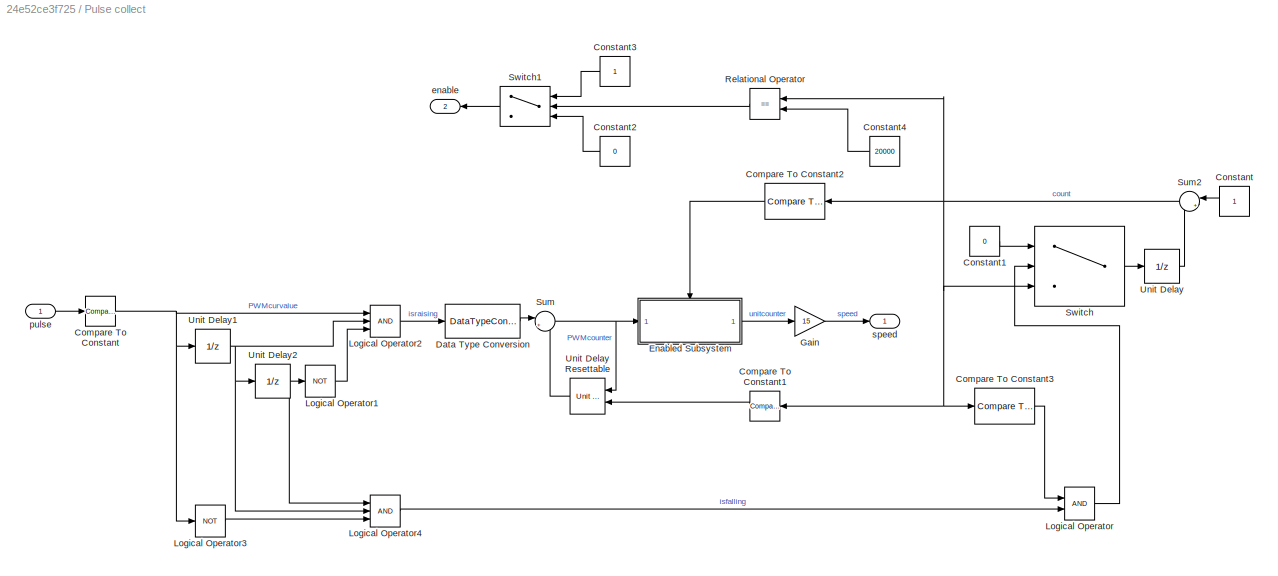
BLOCK [SubSystem] Pulse collect
  FunctionWithSeparateData = off
  MaskHideContents = off
  MinAlgLoopOccurrences = off
  Opaque = off
  Ports = [1, 2]
  PropExecContextOutsideSubsystem = off
  RTWSystemCode = Auto
  RequestExecContextInheritance = off
BLOCK [Reference] Pulse collect/Compare To Constant  REF=simulink/Logic and Bit
Operations/Compare
To Constant
  OutDataTypeStr = uint8
  Ports = [1, 1]
  SourceBlock = simulink/Logic and Bit\nOperations/Compare\nTo Constant
  SourceType = Compare To Constant
  ZeroCross = on
  const = 0.5
  relop = >=
BLOCK [Reference] Pulse collect/Compare To Constant1  REF=simulink/Logic and Bit
Operations/Compare
To Constant
  OutDataTypeStr = boolean
  Ports = [1, 1]
  SourceBlock = simulink/Logic and Bit\nOperations/Compare\nTo Constant
  SourceType = Compare To Constant
  ZeroCross = on
  const = 1
  relop = ==
BLOCK [Reference] Pulse collect/Compare To Constant2  REF=simulink/Logic and Bit
Operations/Compare
To Constant
  OutDataTypeStr = boolean
  Ports = [1, 1]
  SourceBlock = simulink/Logic and Bit\nOperations/Compare\nTo Constant
  SourceType = Compare To Constant
  ZeroCross = on
  const = 20000
  relop = ==
BLOCK [Reference] Pulse collect/Compare To Constant3  REF=simulink/Logic and Bit
Operations/Compare
To Constant
  OutDataTypeStr = boolean
  Ports = [1, 1]
  SourceBlock = simulink/Logic and Bit\nOperations/Compare\nTo Constant
  SourceType = Compare To Constant
  ZeroCross = on
  const = 20000
  relop = >=
BLOCK [Constant] Pulse collect/Constant
  SampleTime = -1
BLOCK [Constant] Pulse collect/Constant1
  SampleTime = -1
  Value = 0
BLOCK [Constant] Pulse collect/Constant2
  Value = 0
BLOCK [Constant] Pulse collect/Constant3
BLOCK [Constant] Pulse collect/Constant4
  Value = 20000
BLOCK [DataTypeConversion] Pulse collect/Data Type Conversion
  RndMeth = Floor
  SaturateOnIntegerOverflow = off
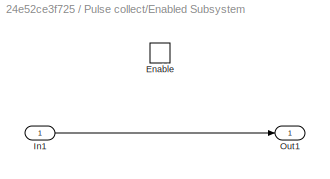
BLOCK [SubSystem] Pulse collect/Enabled Subsystem
  FunctionWithSeparateData = off
  MaskHideContents = off
  MinAlgLoopOccurrences = off
  Opaque = off
  Ports = [1, 1, 1]
  PropExecContextOutsideSubsystem = off
  RTWSystemCode = Auto
  RequestExecContextInheritance = off
  TreatAsAtomicUnit = on
BLOCK [EnablePort] Pulse collect/Enabled Subsystem/Enable
  Ports = []
BLOCK [Inport] Pulse collect/Enabled Subsystem/In1
  IconDisplay = Port number
BLOCK [Outport] Pulse collect/Enabled Subsystem/Out1
  IconDisplay = Port number
BLOCK [Gain] Pulse collect/Gain
  Gain = 15
  OutDataTypeStr = double
  ParamDataTypeStr = Inherit: Inherit via internal rule
  SaturateOnIntegerOverflow = off
BLOCK [Logic] Pulse collect/Logical Operator
  AllPortsSameDT = off
  OutDataTypeStr = boolean
  Ports = [2, 1]
BLOCK [Logic] Pulse collect/Logical Operator1
  AllPortsSameDT = off
  Operator = NOT
  OutDataTypeStr = boolean
  Ports = [1, 1]
BLOCK [Logic] Pulse collect/Logical Operator2
  AllPortsSameDT = off
  Inputs = 3
  OutDataTypeStr = boolean
  Ports = [3, 1]
BLOCK [Logic] Pulse collect/Logical Operator3
  AllPortsSameDT = off
  Operator = NOT
  OutDataTypeStr = boolean
  Ports = [1, 1]
BLOCK [Logic] Pulse collect/Logical Operator4
  AllPortsSameDT = off
  Inputs = 3
  OutDataTypeStr = boolean
  Ports = [3, 1]
BLOCK [RelationalOperator] Pulse collect/Relational Operator
  InputSameDT = off
  Operator = ==
  OutDataTypeStr = boolean
  Ports = [2, 1]
BLOCK [Sum] Pulse collect/Sum
  AccumDataTypeStr = uint16
  IconShape = round
  InputSameDT = off
  Inputs = |++
  OutDataTypeStr = Inherit: Inherit via internal rule
  Ports = [2, 1]
  SaturateOnIntegerOverflow = off
BLOCK [Sum] Pulse collect/Sum2
  IconShape = round
  InputSameDT = off
  Inputs = |++
  OutDataTypeStr = Inherit: Inherit via internal rule
  Ports = [2, 1]
  SaturateOnIntegerOverflow = off
BLOCK [Switch] Pulse collect/Switch
  Criteria = u2 > Threshold
  InputSameDT = off
  SaturateOnIntegerOverflow = off
BLOCK [Switch] Pulse collect/Switch1
  Criteria = u2 ~= 0
  InputSameDT = off
  SaturateOnIntegerOverflow = off
  Threshold = 20000
BLOCK [UnitDelay] Pulse collect/Unit Delay
  InputProcessing = Elements as channels (sample based)
  SampleTime = -1
BLOCK [Reference] Pulse collect/Unit Delay Resettable  REF=simulink/Additional Math
& Discrete/Additional
Discrete/Unit Delay
Resettable
  Ports = [2, 1]
  SourceBlock = simulink/Additional Math\n& Discrete/Additional\nDiscrete/Unit Delay\nResettable
  SourceType = Unit Delay Resettable
  tsamp = -1
  vinit = 0.0
BLOCK [UnitDelay] Pulse collect/Unit Delay1
  InitialCondition = 1
  InputProcessing = Elements as channels (sample based)
  SampleTime = -1
BLOCK [UnitDelay] Pulse collect/Unit Delay2
  InitialCondition = 1
  InputProcessing = Elements as channels (sample based)
  SampleTime = -1
BLOCK [Outport] Pulse collect/enable
  IconDisplay = Port number
  Port = 2
BLOCK [Inport] Pulse collect/pulse
  IconDisplay = Port number
BLOCK [Outport] Pulse collect/speed
  IconDisplay = Port number
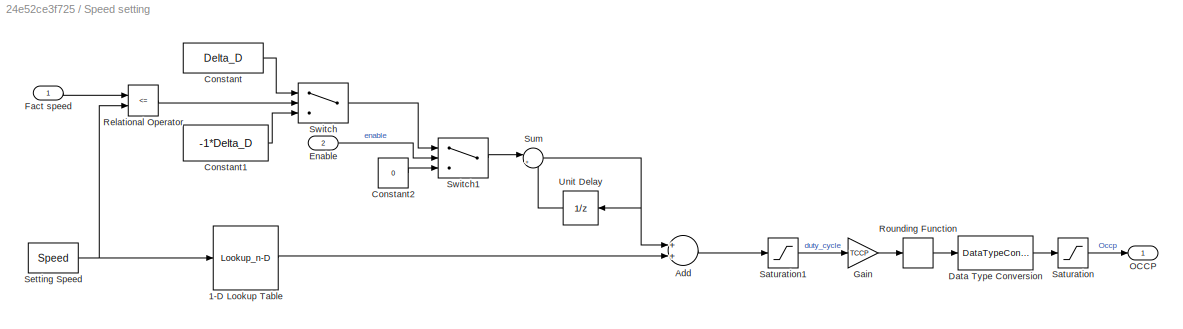
BLOCK [SubSystem] Speed setting
  FunctionWithSeparateData = off
  MaskHideContents = off
  MinAlgLoopOccurrences = off
  Opaque = off
  Ports = [2, 1]
  PropExecContextOutsideSubsystem = off
  RTWSystemCode = Auto
  RequestExecContextInheritance = off
BLOCK [Lookup_n-D] Speed setting/1-D Lookup Table
  BreakpointsForDimension1 = [0 1000 1500 1800 2100 2405]
  ExtrapMethod = Clip
  IntermediateResultsDataTypeStr = Inherit: Inherit via internal rule
  InternalRulePriority = Speed
  NumberOfTableDimensions = 1
  OutDataTypeStr = single
  Ports = [1, 1]
  RndMeth = Simplest
  Table = [0 0.18 0.4 0.57 0.79 1]
  UseLastTableValue = on
BLOCK [Sum] Speed setting/Add
  InputSameDT = off
  OutDataTypeStr = Inherit: Inherit via internal rule
  Ports = [2, 1]
  SaturateOnIntegerOverflow = off
BLOCK [Constant] Speed setting/Constant
  OutDataTypeStr = double
  Value = Delta_D
BLOCK [Constant] Speed setting/Constant1
  OutDataTypeStr = double
  Value = -1*Delta_D
BLOCK [Constant] Speed setting/Constant2
  Value = 0
BLOCK [DataTypeConversion] Speed setting/Data Type Conversion
  OutDataTypeStr = uint16
  RndMeth = Floor
  SaturateOnIntegerOverflow = off
BLOCK [Inport] Speed setting/Enable
  IconDisplay = Port number
  Port = 2
BLOCK [Inport] Speed setting/Fact speed
  IconDisplay = Port number
BLOCK [Gain] Speed setting/Gain
  Gain = TCCP
  OutDataTypeStr = Inherit: Inherit via internal rule
  ParamDataTypeStr = Inherit: Inherit via internal rule
  SaturateOnIntegerOverflow = off
BLOCK [Outport] Speed setting/OCCP
  IconDisplay = Port number
BLOCK [RelationalOperator] Speed setting/Relational Operator
  InputSameDT = off
  Operator = <=
  OutDataTypeStr = boolean
  Ports = [2, 1]
BLOCK [Rounding] Speed setting/Rounding Function
BLOCK [Saturate] Speed setting/Saturation
  InputPortMap = u0
  LowerLimit = 0
  Ports = [1, 1]
  UpperLimit = 9998
BLOCK [Saturate] Speed setting/Saturation1
  InputPortMap = u0
  LowerLimit = 0
  Ports = [1, 1]
  UpperLimit = 1
BLOCK [Constant] Speed setting/Setting Speed
  OutDataTypeStr = uint16
  Value = Speed
BLOCK [Sum] Speed setting/Sum
  AccumDataTypeStr = double
  IconShape = round
  InputSameDT = off
  Inputs = |++
  OutDataTypeStr = Inherit: Inherit via internal rule
  Ports = [2, 1]
  SaturateOnIntegerOverflow = off
BLOCK [Switch] Speed setting/Switch
  InputSameDT = off
  SaturateOnIntegerOverflow = off
BLOCK [Switch] Speed setting/Switch1
  Criteria = u2 > Threshold
  InputSameDT = off
  SaturateOnIntegerOverflow = off
BLOCK [UnitDelay] Speed setting/Unit Delay
  InputProcessing = Elements as channels (sample based)
  SampleTime = -1
BLOCK [Reference] System  REF=FM4_Peripheral_Lib/General/System
  Ports = []
  SourceBlock = FM4_Peripheral_Lib/General/System
  SourceType = FM4 TSP
  g_APB1_division = 2
  g_PLL_clock = 160
  g_PLL_division = [1   2  40]
  g_base_division = 1
  g_channel = 0
  g_edit_APB1 = 80
  g_edit_base = 160
  g_enable_ini = off
  g_enable_mainloop = off
  g_main_clock = 4
  g_use_ratio = off
LINE GPIO3 Read block:1 -> Pulse collect:1
LINE Pulse collect/Compare To Constant1:1 -> Pulse collect/Unit Delay Resettable:2
LINE Pulse collect/Compare To Constant2:1 -> Pulse collect/Enabled Subsystem:enable
LINE Pulse collect/Compare To Constant3:1 -> Pulse collect/Logical Operator:1
NET Pulse collect/Compare To Constant:1 -> Pulse collect/Logical Operator2:1, Pulse collect/Logical Operator3:1, Pulse collect/Unit Delay1:1
LINE Pulse collect/Constant1:1 -> Pulse collect/Switch:1
LINE Pulse collect/Constant2:1 -> Pulse collect/Switch1:3
LINE Pulse collect/Constant3:1 -> Pulse collect/Switch1:1
LINE Pulse collect/Constant4:1 -> Pulse collect/Relational Operator:2
LINE Pulse collect/Constant:1 -> Pulse collect/Sum2:1
LINE Pulse collect/Data Type Conversion:1 -> Pulse collect/Sum:1
LINE Pulse collect/Enabled Subsystem/In1:1 -> Pulse collect/Enabled Subsystem/Out1:1
LINE Pulse collect/Enabled Subsystem:1 -> Pulse collect/Gain:1
LINE Pulse collect/Gain:1 -> Pulse collect/speed:1
LINE Pulse collect/Logical Operator1:1 -> Pulse collect/Logical Operator2:3
LINE Pulse collect/Logical Operator2:1 -> Pulse collect/Data Type Conversion:1
LINE Pulse collect/Logical Operator3:1 -> Pulse collect/Logical Operator4:3
LINE Pulse collect/Logical Operator4:1 -> Pulse collect/Logical Operator:2
LINE Pulse collect/Logical Operator:1 -> Pulse collect/Switch:2
LINE Pulse collect/Relational Operator:1 -> Pulse collect/Switch1:2
NET Pulse collect/Sum2:1 -> Pulse collect/Compare To Constant1:1, Pulse collect/Compare To Constant2:1, Pulse collect/Compare To Constant3:1, Pulse collect/Relational Operator:1, Pulse collect/Switch:3
NET Pulse collect/Sum:1 -> Pulse collect/Enabled Subsystem:1, Pulse collect/Unit Delay Resettable:1
LINE Pulse collect/Switch1:1 -> Pulse collect/enable:1
LINE Pulse collect/Switch:1 -> Pulse collect/Unit Delay:1
LINE Pulse collect/Unit Delay Resettable:1 -> Pulse collect/Sum:2
NET Pulse collect/Unit Delay1:1 -> Pulse collect/Logical Operator2:2, Pulse collect/Logical Operator4:2, Pulse collect/Unit Delay2:1
NET Pulse collect/Unit Delay2:1 -> Pulse collect/Logical Operator1:1, Pulse collect/Logical Operator4:1
LINE Pulse collect/Unit Delay:1 -> Pulse collect/Sum2:2
LINE Pulse collect/pulse:1 -> Pulse collect/Compare To Constant:1
LINE Pulse collect:1 -> Speed setting:1
LINE Pulse collect:2 -> Speed setting:2
LINE Speed setting/1-D Lookup Table:1 -> Speed setting/Add:2
LINE Speed setting/Add:1 -> Speed setting/Saturation1:1
LINE Speed setting/Constant1:1 -> Speed setting/Switch:3
LINE Speed setting/Constant2:1 -> Speed setting/Switch1:3
LINE Speed setting/Constant:1 -> Speed setting/Switch:1
LINE Speed setting/Data Type Conversion:1 -> Speed setting/Saturation:1
LINE Speed setting/Enable:1 -> Speed setting/Switch1:2
LINE Speed setting/Fact speed:1 -> Speed setting/Relational Operator:1
LINE Speed setting/Gain:1 -> Speed setting/Rounding Function:1
LINE Speed setting/Relational Operator:1 -> Speed setting/Switch:2
LINE Speed setting/Rounding Function:1 -> Speed setting/Data Type Conversion:1
LINE Speed setting/Saturation1:1 -> Speed setting/Gain:1
LINE Speed setting/Saturation:1 -> Speed setting/OCCP:1
NET Speed setting/Setting Speed:1 -> Speed setting/1-D Lookup Table:1, Speed setting/Relational Operator:2
NET Speed setting/Sum:1 -> Speed setting/Add:1, Speed setting/Unit Delay:1
LINE Speed setting/Switch1:1 -> Speed setting/Sum:1
LINE Speed setting/Switch:1 -> Speed setting/Switch1:1
LINE Speed setting/Unit Delay:1 -> Speed setting/Sum:2
LINE Speed setting:1 -> MFT0 Init block:1
note: NET lines group one-source signal fan-out (src -> all destinations, sorted); 1:1 wires keep LINE
